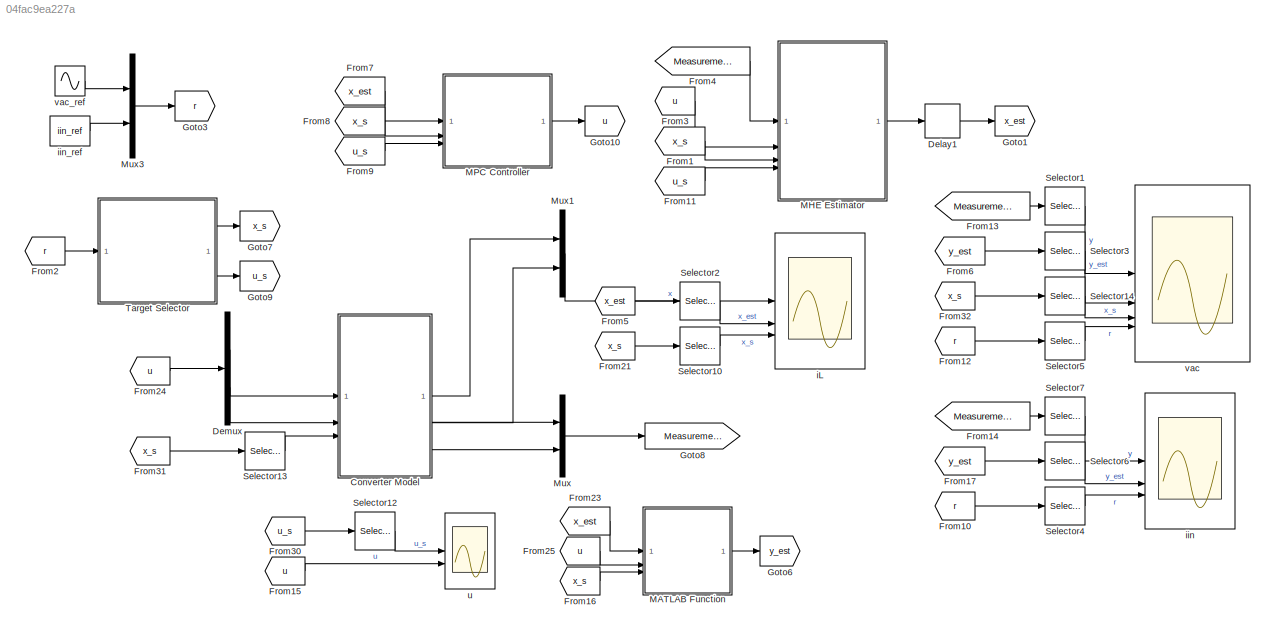
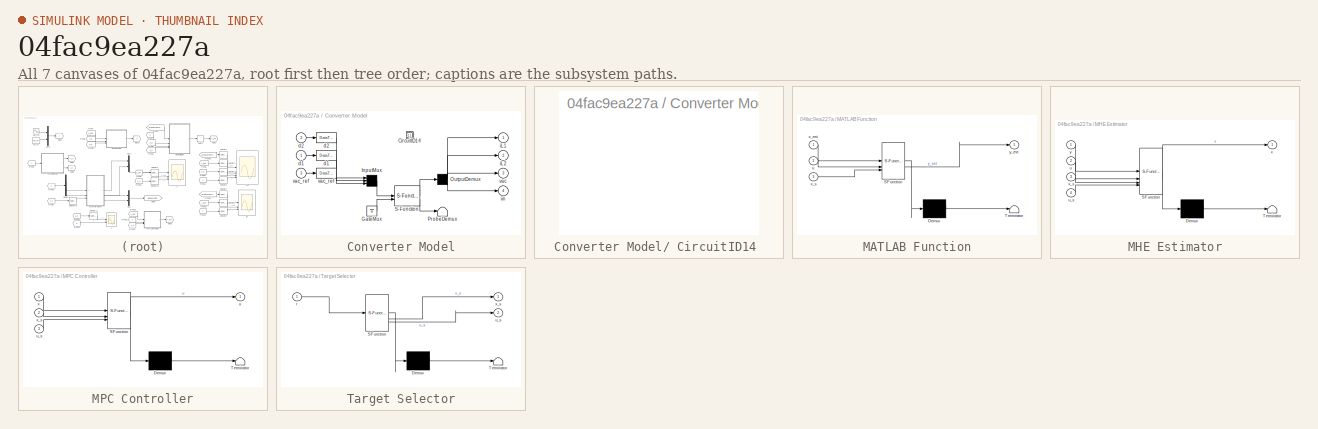
[diagram: thumbnail index - all 7 canvases of the model, root first then tree order]
MODEL slx_04fac9ea227a
KIND model
CONFIG AbsTol = auto
CONFIG EnableMultiTasking = off
CONFIG FixedStep = p.Ts
CONFIG MaxStep = auto
CONFIG MinStep = auto
CONFIG RelTol = 1e-3
CONFIG SampleTimeConstraint = Unconstrained
CONFIG SolverName = ode45
CONFIG StartTime = 0.0
CONFIG StopTime = p.Tmax
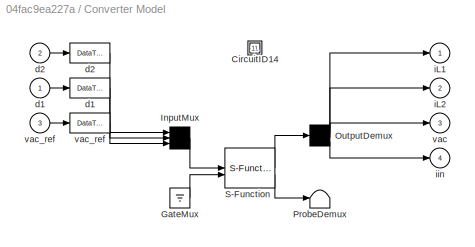
BLOCK [SubSystem] Converter Model
  CopyFcn = plecs('sl', 203);
  DeleteFcn = plecs('sl', 205);
  DestroyFcn = plecs('sl', 207);
  ErrorFcn = plerrorfcn
  InitFcn = plecs('sl', 214);
  LoadFcn = plecs('sl', 200);
  NameChangeFcn = plecs('sl', 210);
  OpenFcn = plecs('sl', 202);
  PostSaveFcn = plecs('sl', 201);
  PreCopyFcn = plecs('sl', 216);
  PreSaveFcn = plecs('sl', 211);
  ShowPortLabels = FromPortBlockName
  StartFcn = plecs('sl', 208);
  StopFcn = plecs('sl', 209);
  UndoDeleteFcn = plecs('sl', 206);
BLOCK [SubSystem] Converter Model/ CircuitID14 
BLOCK [Ground] Converter Model/ GateMux 
BLOCK [Mux] Converter Model/ InputMux 
  Inputs = [ 1 1 1 ]
BLOCK [Demux] Converter Model/ OutputDemux 
  Outputs = [ 1 1 1 1 ]
BLOCK [Terminator] Converter Model/ ProbeDemux 
BLOCK [S-Function] Converter Model/ S-Function 
  EnableBusSupport = off
  FunctionName = plecs
  SFcnIsStateOwnerBlock = off
  SFunctionDeploymentMode = off
BLOCK [DataTypeConversion] Converter Model/ d1 
BLOCK [DataTypeConversion] Converter Model/ d2 
BLOCK [DataTypeConversion] Converter Model/ vac_ref 
BLOCK [Inport] Converter Model/d1
  PortDimensions = 1
BLOCK [Inport] Converter Model/d2
  Port = 2
  PortDimensions = 1
BLOCK [Outport] Converter Model/iL1
  PortDimensions = 1
BLOCK [Outport] Converter Model/iL2
  Port = 2
  PortDimensions = 1
BLOCK [Outport] Converter Model/iin
  Port = 4
  PortDimensions = 1
BLOCK [Outport] Converter Model/vac
  Port = 3
  PortDimensions = 1
BLOCK [Inport] Converter Model/vac_ref
  Port = 3
  PortDimensions = 1
BLOCK [Delay] Delay1
  DelayLength = 1
  InitialCondition = x_0
  InputPortMap = u0
  SampleTime = p.Ts
BLOCK [Demux] Demux
  Outputs = nu
BLOCK [From] From1
  GotoTag = x_s
BLOCK [From] From10
  GotoTag = r
BLOCK [From] From11
  GotoTag = u_s
BLOCK [From] From12
  GotoTag = r
BLOCK [From] From13
  GotoTag = Measurements
BLOCK [From] From14
  GotoTag = Measurements
BLOCK [From] From15
  GotoTag = u
BLOCK [From] From16
  GotoTag = x_s
BLOCK [From] From17
  GotoTag = y_est
BLOCK [From] From2
  GotoTag = r
BLOCK [From] From21
  GotoTag = x_s
BLOCK [From] From23
  GotoTag = x_est
BLOCK [From] From24
  GotoTag = u
BLOCK [From] From25
  GotoTag = u
BLOCK [From] From3
  GotoTag = u
BLOCK [From] From30
  GotoTag = u_s
BLOCK [From] From31
  GotoTag = x_s
BLOCK [From] From32
  GotoTag = x_s
BLOCK [From] From4
  GotoTag = Measurements
BLOCK [From] From5
  GotoTag = x_est
BLOCK [From] From6
  GotoTag = y_est
BLOCK [From] From7
  GotoTag = x_est
BLOCK [From] From8
  GotoTag = x_s
BLOCK [From] From9
  GotoTag = u_s
BLOCK [Goto] Goto1
  GotoTag = x_est
BLOCK [Goto] Goto10
  GotoTag = u
BLOCK [Goto] Goto3
  GotoTag = r
BLOCK [Goto] Goto6
  GotoTag = y_est
BLOCK [Goto] Goto7
  GotoTag = x_s
BLOCK [Goto] Goto8
  GotoTag = Measurements
BLOCK [Goto] Goto9
  GotoTag = u_s
BLOCK [SubSystem] MATLAB Function
  ErrorFcn = Stateflow.Translate.translate
  PermitHierarchicalResolution = ExplicitOnly
  SFBlockType = MATLAB Function
  SystemSampleTime = p.Ts
  TreatAsAtomicUnit = on
BLOCK [Demux] MATLAB Function/ Demux 
  Outputs = 1
BLOCK [S-Function] MATLAB Function/ SFunction 
  EnableBusSupport = on
  FunctionName = sf_sfun
  Parameters = p
  PortCounts = [3 2]
  SFcnIsStateOwnerBlock = off
  SFunctionDeploymentMode = off
  Tag = Stateflow S-Function 5
BLOCK [Terminator] MATLAB Function/ Terminator 
BLOCK [Inport] MATLAB Function/u
  Port = 2
BLOCK [Inport] MATLAB Function/x_est
BLOCK [Inport] MATLAB Function/x_s
  Port = 3
BLOCK [Outport] MATLAB Function/y_est
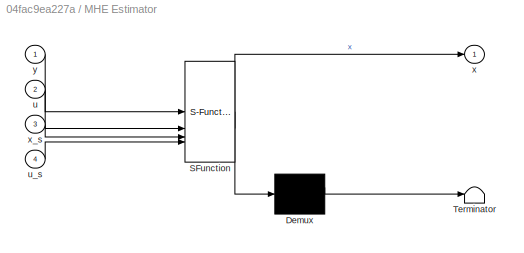
BLOCK [SubSystem] MHE Estimator
  ErrorFcn = Stateflow.Translate.translate
  PermitHierarchicalResolution = ExplicitOnly
  SFBlockType = MATLAB Function
  SystemSampleTime = p.Ts
  TreatAsAtomicUnit = on
BLOCK [Demux] MHE Estimator/ Demux 
  Outputs = 1
BLOCK [S-Function] MHE Estimator/ SFunction 
  EnableBusSupport = on
  FunctionName = sf_sfun
  Parameters = mhe
  PortCounts = [4 2]
  SFcnIsStateOwnerBlock = off
  SFunctionDeploymentMode = off
  Tag = Stateflow S-Function 3
BLOCK [Terminator] MHE Estimator/ Terminator 
BLOCK [Inport] MHE Estimator/u
  Port = 2
BLOCK [Inport] MHE Estimator/u_s
  Port = 4
BLOCK [Outport] MHE Estimator/x
BLOCK [Inport] MHE Estimator/x_s
  Port = 3
BLOCK [Inport] MHE Estimator/y
BLOCK [SubSystem] MPC Controller
  ErrorFcn = Stateflow.Translate.translate
  PermitHierarchicalResolution = ExplicitOnly
  SFBlockType = MATLAB Function
  SystemSampleTime = p.Ts
  TreatAsAtomicUnit = on
BLOCK [Demux] MPC Controller/ Demux 
  Outputs = 1
BLOCK [S-Function] MPC Controller/ SFunction 
  EnableBusSupport = on
  FunctionName = sf_sfun
  Parameters = mpc
  PortCounts = [3 2]
  SFcnIsStateOwnerBlock = off
  SFunctionDeploymentMode = off
  Tag = Stateflow S-Function 2
BLOCK [Terminator] MPC Controller/ Terminator 
BLOCK [Outport] MPC Controller/u
BLOCK [Inport] MPC Controller/u_s
  Port = 3
BLOCK [Inport] MPC Controller/x
BLOCK [Inport] MPC Controller/x_s
  Port = 2
BLOCK [Mux] Mux
  DisplayOption = bar
  Inputs = ny
BLOCK [Mux] Mux1
  DisplayOption = bar
  Inputs = nx-1
BLOCK [Mux] Mux3
  DisplayOption = bar
  Inputs = ny
BLOCK [Selector] Selector1
  IndexOptions = Index vector (dialog)
  Indices = 1
  InputPortWidth = ny
  OutputSizes = 1
BLOCK [Selector] Selector10
  IndexOptions = Index vector (dialog)
  Indices = [1:2]
  InputPortWidth = (N+1)*nx
  OutputSizes = 1
BLOCK [Selector] Selector12
  IndexOptions = Index vector (dialog)
  Indices = [1:nu]
  InputPortWidth = (N+1)*nu
  OutputSizes = 1
BLOCK [Selector] Selector13
  IndexOptions = Index vector (dialog)
  Indices = nx
  InputPortWidth = (N+1)*nx
  OutputSizes = 1
BLOCK [Selector] Selector14
  IndexOptions = Index vector (dialog)
  Indices = 3
  InputPortWidth = (N+1)*nx
  OutputSizes = 1
BLOCK [Selector] Selector2
  IndexOptions = Index vector (dialog)
  Indices = [1, 2]
  InputPortWidth = nx
  OutputSizes = 1
BLOCK [Selector] Selector3
  IndexOptions = Index vector (dialog)
  Indices = 1
  InputPortWidth = ny
  OutputSizes = 1
BLOCK [Selector] Selector4
  IndexOptions = Index vector (dialog)
  Indices = 2
  InputPortWidth = ny
  OutputSizes = 1
BLOCK [Selector] Selector5
  IndexOptions = Index vector (dialog)
  Indices = 1
  InputPortWidth = ny
  OutputSizes = 1
BLOCK [Selector] Selector6
  IndexOptions = Index vector (dialog)
  Indices = 2
  InputPortWidth = ny
  OutputSizes = 1
BLOCK [Selector] Selector7
  IndexOptions = Index vector (dialog)
  Indices = 2
  InputPortWidth = ny
  OutputSizes = 1
BLOCK [SubSystem] Target Selector
  ErrorFcn = Stateflow.Translate.translate
  PermitHierarchicalResolution = ExplicitOnly
  SFBlockType = MATLAB Function
  SystemSampleTime = p.Ts
  TreatAsAtomicUnit = on
BLOCK [Demux] Target Selector/ Demux 
  Outputs = 1
BLOCK [S-Function] Target Selector/ SFunction 
  EnableBusSupport = on
  FunctionName = sf_sfun
  Parameters = mpc
  PortCounts = [1 3]
  SFcnIsStateOwnerBlock = off
  SFunctionDeploymentMode = off
  Tag = Stateflow S-Function 1
BLOCK [Terminator] Target Selector/ Terminator 
BLOCK [Inport] Target Selector/r
BLOCK [Outport] Target Selector/u_s
  Port = 2
BLOCK [Outport] Target Selector/x_s
BLOCK [Scope] iL
  Floating = off
  NumInputPorts = 3
  ScopeSpecificationString = Simulink.scopes.TimeScopeBlockCfg('CurrentConfiguration', extmgr.ConfigurationSet(extmgr.Configuration('Core','General UI',true),extmgr.Configuration('Core','Source UI',true),extmgr.Configuration('Sources','WiredSimulink',true,'DataLoggingVariableName','iL','DataLogging',true),extmgr.Configuration('Visuals','Time Domain',true,'SerializedDisplays',{struct('MinYLimReal','-6.48575','MaxYLimReal','4.6...<+2502ch>
BLOCK [Scope] iin
  Floating = off
  NumInputPorts = 3
  ScopeSpecificationString = Simulink.scopes.TimeScopeBlockCfg('CurrentConfiguration', extmgr.ConfigurationSet(extmgr.Configuration('Core','General UI',true),extmgr.Configuration('Core','Source UI',true),extmgr.Configuration('Sources','WiredSimulink',true,'DataLoggingVariableName','iin','DataLogging',true),extmgr.Configuration('Visuals','Time Domain',true,'SerializedDisplays',{struct('MinYLimReal','-1.02609','MaxYLimReal','3....<+2472ch>
BLOCK [Constant] iin_ref
  SampleTime = p.Ts
  Value = iin_ref
BLOCK [Scope] u
  Floating = off
  NumInputPorts = 2
  ScopeSpecificationString = Simulink.scopes.TimeScopeBlockCfg('CurrentConfiguration', extmgr.ConfigurationSet(extmgr.Configuration('Core','General UI',true),extmgr.Configuration('Core','Source UI',true),extmgr.Configuration('Sources','WiredSimulink',true,'DataLoggingVariableName','u','DataLogging',true),extmgr.Configuration('Visuals','Time Domain',true,'SerializedDisplays',{struct('MinYLimReal','-0.10393','MaxYLimReal','0.93...<+2115ch>
BLOCK [Scope] vac
  Floating = off
  NumInputPorts = 4
  ScopeSpecificationString = Simulink.scopes.TimeScopeBlockCfg('CurrentConfiguration', extmgr.ConfigurationSet(extmgr.Configuration('Core','General UI',true),extmgr.Configuration('Core','Source UI',true),extmgr.Configuration('Sources','WiredSimulink',true,'DataLoggingVariableName','vac','DataLogging',true),extmgr.Configuration('Visuals','Time Domain',true,'SerializedDisplays',{struct('MinYLimReal','-406.25','MaxYLimReal','406...<+2474ch>
BLOCK [Sin] vac_ref
  Amplitude = p.Vac
  Frequency = 2*pi*p.fgrid
  SampleTime = 0
LINE Converter Model:1 -> Mux1:1
LINE Converter Model:2 -> Mux1:2
LINE Converter Model:3 -> Mux:1
LINE Converter Model:4 -> Mux:2
LINE Delay1:1 -> Goto1:1
LINE Demux:1 -> Converter Model:1
LINE Demux:2 -> Converter Model:2
LINE From10:1 -> Selector4:1
LINE From11:1 -> MHE Estimator:4
LINE From12:1 -> Selector5:1
LINE From13:1 -> Selector1:1
LINE From14:1 -> Selector7:1
LINE From15:1 -> u:2
LINE From16:1 -> MATLAB Function:3
LINE From17:1 -> Selector6:1
LINE From1:1 -> MHE Estimator:3
LINE From21:1 -> Selector10:1
LINE From23:1 -> MATLAB Function:1
LINE From24:1 -> Demux:1
LINE From25:1 -> MATLAB Function:2
LINE From2:1 -> Target Selector:1
LINE From30:1 -> Selector12:1
LINE From31:1 -> Selector13:1
LINE From32:1 -> Selector14:1
LINE From3:1 -> MHE Estimator:2
LINE From4:1 -> MHE Estimator:1
LINE From5:1 -> Selector2:1
LINE From6:1 -> Selector3:1
LINE From7:1 -> MPC Controller:1
LINE From8:1 -> MPC Controller:2
LINE From9:1 -> MPC Controller:3
LINE MATLAB Function:1 -> Goto6:1
LINE MHE Estimator:1 -> Delay1:1
LINE MPC Controller:1 -> Goto10:1
LINE Mux1:1 -> iL:1
LINE Mux3:1 -> Goto3:1
LINE Mux:1 -> Goto8:1
LINE Selector10:1 -> iL:3
LINE Selector12:1 -> u:1
LINE Selector13:1 -> Converter Model:3
LINE Selector14:1 -> vac:3
LINE Selector1:1 -> vac:1
LINE Selector2:1 -> iL:2
LINE Selector3:1 -> vac:2
LINE Selector4:1 -> iin:3
LINE Selector5:1 -> vac:4
LINE Selector6:1 -> iin:2
LINE Selector7:1 -> iin:1
LINE Target Selector:1 -> Goto7:1
LINE Target Selector:2 -> Goto9:1
LINE iin_ref:1 -> Mux3:2
LINE vac_ref:1 -> Mux3:1
CHART Target Selector states=1 transitions=1
  STATE_LABEL 'eML_blk_kernel()'
  STATE_LABEL "SCRIPT:\nfunction [x_s, u_s] = select_target(r, mpc)\n\noptions = optimoptions('fsolve', 'Algorithm', 'levenberg-marquardt');\n\np = mpc.p;\n\nN = mpc.N;\nnx = mpc.nx;\nnu = mpc.nu;\n\npersistent xu_0\nif isempty(xu_0), xu_0 = zeros(nx+nu,1); end\n\npersistent sign_cos\nif isempty(sign_cos), sign_cos = 1; end\nif abs(r(1)) == p.Vac\n    sign_cos = sign_cos * (-1);\nend\n\npersistent X_S U_S iin_ref_old\nif isempty(iin...<+1343ch>"
CHART MPC Controller states=1 transitions=1
  STATE_LABEL 'eML_blk_kernel()'
  STATE_LABEL "SCRIPT:\nfunction u = MPC(x, x_s, u_s, mpc)\n\ncoder.extrinsic('fprintf');\noptions = optimoptions('fmincon', 'Algorithm', 'sqp');\n\np = mpc.p;\nf = @(x, u, x_s) dynamics_wrapper(x, u, x_s, p);\nk1 = @(x, u, x_s) f(x, u, x_s);\nk2 = @(x, u, x_s) f(x + p.Ts/2*k1(x,u,x_s), u, x_s);\nk3 = @(x, u, x_s) f(x + p.Ts/2*k2(x,u,x_s), u, x_s);\nk4 = @(x, u, x_s) f(x + p.Ts*k3(x,u,x_s), u, x_s);\nfd = @(x, u, x_s) x + p...<+1597ch>"
CHART MHE Estimator states=1 transitions=1
  STATE_LABEL 'eML_blk_kernel()'
  STATE_LABEL "SCRIPT:\nfunction x = MHE(y, u, x_s, u_s, mhe)\n\noptions = optimoptions('fmincon', 'Algorithm', 'sqp');\n\np = mhe.p;\nf = @(x, u, x_s) dynamics_wrapper(x, u, x_s, p);\nk1 = @(x, u, x_s) f(x, u, x_s);\nk2 = @(x, u, x_s) f(x + p.Ts/2*k1(x,u,x_s), u, x_s);\nk3 = @(x, u, x_s) f(x + p.Ts/2*k2(x,u,x_s), u, x_s);\nk4 = @(x, u, x_s) f(x + p.Ts*k3(x,u,x_s), u, x_s);\nfd = @(x, u, x_s) x + p.Ts/6*(k1(x,u,x_s) + 2*k2...<+2661ch>"
CHART MATLAB Function states=1 transitions=1
  STATE_LABEL 'eML_blk_kernel()'
  STATE_LABEL 'SCRIPT:\nfunction y_est = gd(x_est, u, x_s, p)\n\ny_est = output_wrapper(x_est, u, x_s, p);\n\nfunction y = output_wrapper(x, u, x_s, p)\n    if x_s(3) >= 0\n        [~, y] = MIMO_Case_A_dynamics_SM1(x, u, p);\n    else\n        [~, y] = MIMO_Case_A_dynamics_SM2(x, u, p);\n    end\nend\n\nend\n'
CHART  states=0 transitions=0
CHART  states=0 transitions=0
CHART  states=0 transitions=0
CHART  states=0 transitions=0
